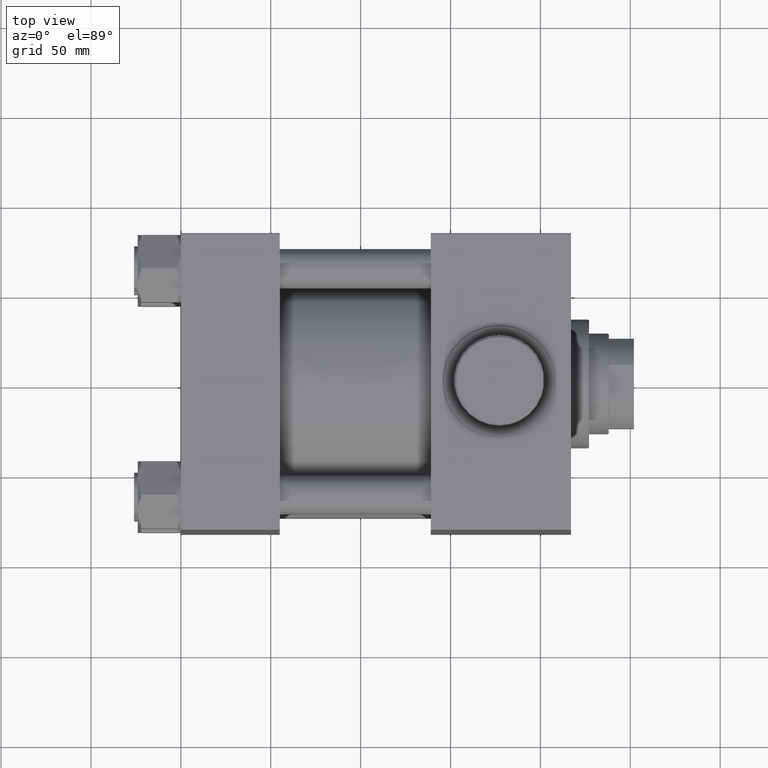
[diagram: clean part render]
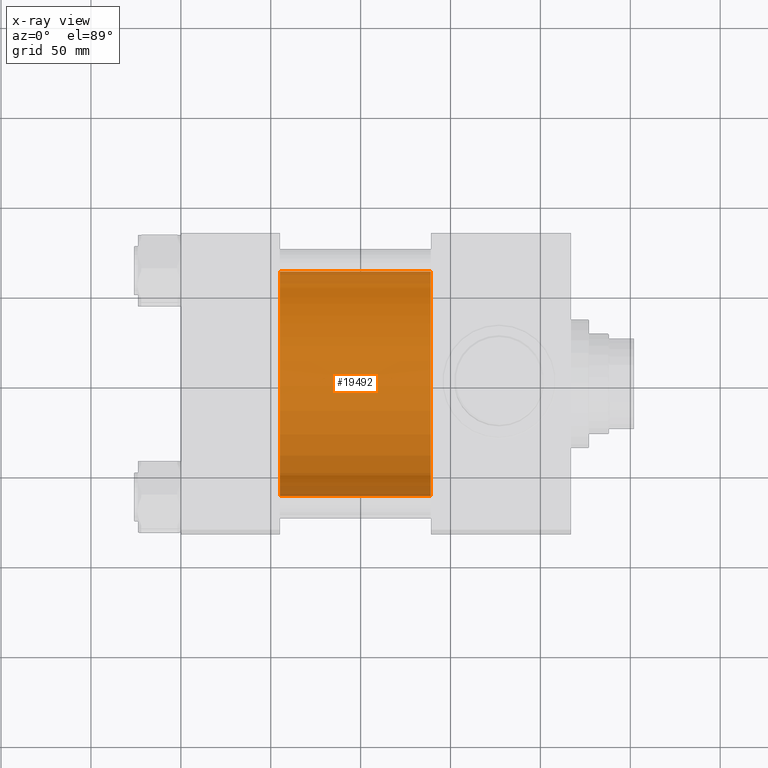
[diagram: x-ray — body ghosted, one internal face saturated and labeled with its STEP entity id]
A machine part, top view, then the same camera in x-ray: the body is ghosted and one INTERNAL B-rep face — a face not visible from any outside direction — is saturated and labeled: STEP entity #19492.
In plain terms, the highlighted cylindrical surface (partial cylindrical patch) has radius 62.5 mm, axis along (-1, -0, 0).
Its self-contained STEP definition (entity closure, byte-faithful):
#411 = VERTEX_POINT ( 'NONE', #11514 ) ;
#1677 = CARTESIAN_POINT ( 'NONE',  ( 55.00000000000000000, -3.469446951953614189E-15, 0.000000000000000000 ) ) ;
#2380 = DIRECTION ( 'NONE',  ( -1.000000000000000000, -0.000000000000000000, -0.000000000000000000 ) ) ;
#2613 = LINE ( 'NONE', #31314, #17465 ) ;
#3309 = ORIENTED_EDGE ( 'NONE', *, *, #46638, .T. ) ;
#6482 = EDGE_CURVE ( 'NONE', #39975, #25476, #13329, .T. ) ;
#9128 = ORIENTED_EDGE ( 'NONE', *, *, #37797, .F. ) ;
#9992 = DIRECTION ( 'NONE',  ( 0.000000000000000000, 0.000000000000000000, -1.000000000000000000 ) ) ;
#10446 = CYLINDRICAL_SURFACE ( 'NONE', #24926, 62.50000000000000000 ) ;
#11514 = CARTESIAN_POINT ( 'NONE',  ( 55.00000000000000000, 4.184595542717342037E-15, -62.50000000000000000 ) ) ;
#12311 = LINE ( 'NONE', #41455, #25364 ) ;
#13329 = CIRCLE ( 'NONE', #19374, 62.50000000000000000 ) ;
#17465 = VECTOR ( 'NONE', #2380, 1000.000000000000000 ) ;
#17558 = FACE_OUTER_BOUND ( 'NONE', #26400, .T. ) ;
#19374 = AXIS2_PLACEMENT_3D ( 'NONE', #37577, #21814, #9992 ) ;
#19492 = ADVANCED_FACE ( 'NONE', ( #17558 ), #10446, .F. ) ;
#19670 = DIRECTION ( 'NONE',  ( 0.000000000000000000, 0.000000000000000000, -1.000000000000000000 ) ) ;
#21814 = DIRECTION ( 'NONE',  ( 1.000000000000000000, 0.000000000000000000, 0.000000000000000000 ) ) ;
#22963 = DIRECTION ( 'NONE',  ( -1.000000000000000000, -0.000000000000000000, -0.000000000000000000 ) ) ;
#24926 = AXIS2_PLACEMENT_3D ( 'NONE', #32042, #42920, #29878 ) ;
#25364 = VECTOR ( 'NONE', #22963, 1000.000000000000000 ) ;
#25476 = VERTEX_POINT ( 'NONE', #46272 ) ;
#26400 = EDGE_LOOP ( 'NONE', ( #9128, #44063, #3309, #34571 ) ) ;
#27653 = CARTESIAN_POINT ( 'NONE',  ( 55.00000000000000000, -3.469446951953614189E-15, 62.50000000000000000 ) ) ;
#29108 = VERTEX_POINT ( 'NONE', #27653 ) ;
#29878 = DIRECTION ( 'NONE',  ( 0.000000000000000000, 0.000000000000000000, 1.000000000000000000 ) ) ;
#31031 = CIRCLE ( 'NONE', #46183, 62.50000000000000000 ) ;
#31314 = CARTESIAN_POINT ( 'NONE',  ( 139.0000000000000000, -3.469446951953614189E-15, 62.50000000000000000 ) ) ;
#32042 = CARTESIAN_POINT ( 'NONE',  ( 139.0000000000000000, -3.469446951953614189E-15, 0.000000000000000000 ) ) ;
#34571 = ORIENTED_EDGE ( 'NONE', *, *, #40525, .F. ) ;
#37577 = CARTESIAN_POINT ( 'NONE',  ( 139.0000000000000000, -3.469446951953614189E-15, 0.000000000000000000 ) ) ;
#37797 = EDGE_CURVE ( 'NONE', #39975, #411, #12311, .T. ) ;
#39445 = CARTESIAN_POINT ( 'NONE',  ( 139.0000000000000000, 4.184595542717342037E-15, -62.50000000000000000 ) ) ;
#39975 = VERTEX_POINT ( 'NONE', #39445 ) ;
#40525 = EDGE_CURVE ( 'NONE', #411, #29108, #31031, .T. ) ;
#41455 = CARTESIAN_POINT ( 'NONE',  ( 139.0000000000000000, 4.184595542717342037E-15, -62.50000000000000000 ) ) ;
#41953 = DIRECTION ( 'NONE',  ( 1.000000000000000000, 0.000000000000000000, 0.000000000000000000 ) ) ;
#42920 = DIRECTION ( 'NONE',  ( -1.000000000000000000, -0.000000000000000000, -0.000000000000000000 ) ) ;
#44063 = ORIENTED_EDGE ( 'NONE', *, *, #6482, .T. ) ;
#46183 = AXIS2_PLACEMENT_3D ( 'NONE', #1677, #41953, #19670 ) ;
#46272 = CARTESIAN_POINT ( 'NONE',  ( 139.0000000000000000, -3.469446951953614189E-15, 62.50000000000000000 ) ) ;
#46638 = EDGE_CURVE ( 'NONE', #25476, #29108, #2613, .T. ) ;